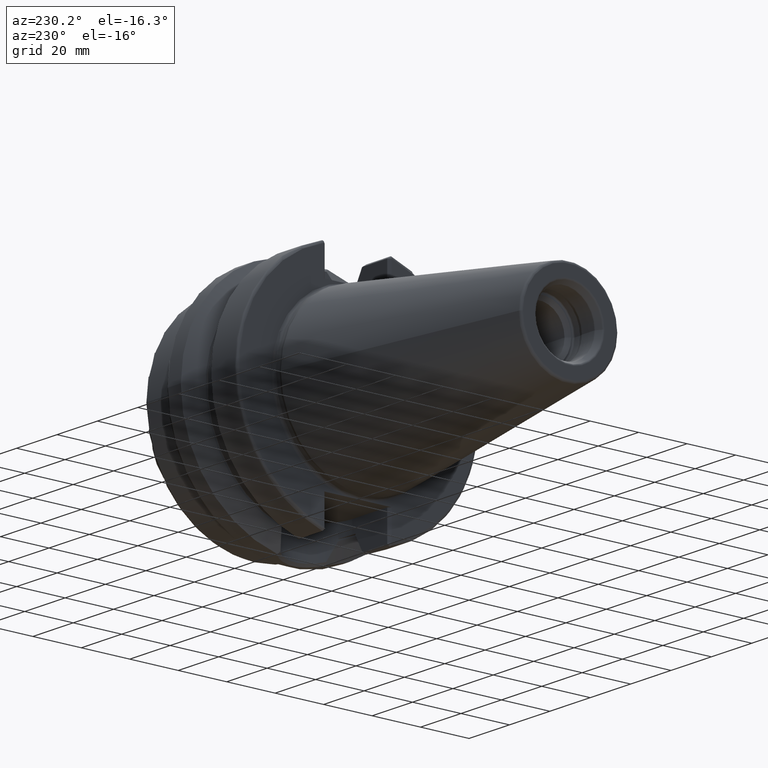
[diagram: clean part render]
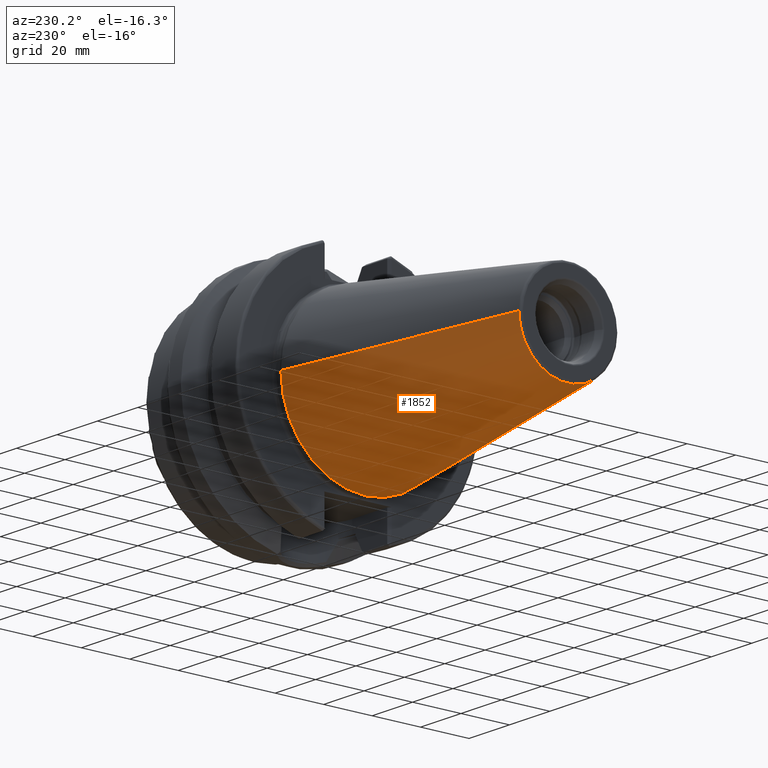
[diagram: same view with one face highlighted and labeled with its STEP entity id]
A machine part, auxiliary view. The second image highlights one B-rep face of the part: STEP entity #1852.
In plain terms, the highlighted conical surface has half-angle 8.298 deg.
Its self-contained STEP definition (entity closure, byte-faithful):
#32=CARTESIAN_POINT('',(-1.009443186692E2,0.E0,0.E0));
#33=DIRECTION('',(-1.E0,0.E0,0.E0));
#34=DIRECTION('',(0.E0,1.E0,0.E0));
#35=AXIS2_PLACEMENT_3D('',#32,#33,#34);
#47=DIRECTION('',(-9.895312636440E-1,-1.443186691705E-1,0.E0));
#48=VECTOR('',#47,1.013865167670E2);
#49=CARTESIAN_POINT('',(-6.191906162849E-1,3.483469384295E1,0.E0));
#50=LINE('',#49,#48);
#51=DIRECTION('',(-9.895312636440E-1,1.443186691705E-1,0.E0));
#52=VECTOR('',#51,1.013865167670E2);
#53=CARTESIAN_POINT('',(-6.191906162849E-1,-3.483469384295E1,0.E0));
#54=LINE('',#53,#52);
#55=CARTESIAN_POINT('',(-6.191906162850E-1,0.E0,0.E0));
#56=DIRECTION('',(-1.E0,0.E0,0.E0));
#57=DIRECTION('',(0.E0,1.E0,0.E0));
#58=AXIS2_PLACEMENT_3D('',#55,#56,#57);
#1446=CARTESIAN_POINT('',(-1.009443186692E2,2.020272667130E1,0.E0));
#1448=VERTEX_POINT('',#1446);
#1450=CARTESIAN_POINT('',(-1.009443186692E2,-2.020272667130E1,0.E0));
#1452=VERTEX_POINT('',#1450);
#1665=CARTESIAN_POINT('',(-6.191906162849E-1,3.483469384295E1,0.E0));
#1666=VERTEX_POINT('',#1665);
#1667=CARTESIAN_POINT('',(-6.191906162849E-1,-3.483469384295E1,0.E0));
#1668=VERTEX_POINT('',#1667);
#1840=CARTESIAN_POINT('',(-5.078175464273E1,0.E0,0.E0));
#1841=DIRECTION('',(1.E0,0.E0,0.E0));
#1842=DIRECTION('',(0.E0,-1.E0,0.E0));
#1843=AXIS2_PLACEMENT_3D('',#1840,#1841,#1842);
#1844=CONICAL_SURFACE('',#1843,2.751871025712E1,8.297826828206E0);
#1845=ORIENTED_EDGE('',*,*,#1830,.T.);
#1846=ORIENTED_EDGE('',*,*,#1807,.T.);
#1847=ORIENTED_EDGE('',*,*,#1834,.F.);
#1849=ORIENTED_EDGE('',*,*,#1848,.F.);
#1850=EDGE_LOOP('',(#1845,#1846,#1847,#1849));
#1851=FACE_OUTER_BOUND('',#1850,.F.);
#1852=ADVANCED_FACE('',(#1851),#1844,.T.);
#36=CIRCLE('',#35,2.020272667130E1);
#59=CIRCLE('',#58,3.483469384295E1);
#1807=EDGE_CURVE('',#1448,#1452,#36,.T.);
#1830=EDGE_CURVE('',#1666,#1448,#50,.T.);
#1834=EDGE_CURVE('',#1668,#1452,#54,.T.);
#1848=EDGE_CURVE('',#1666,#1668,#59,.T.);